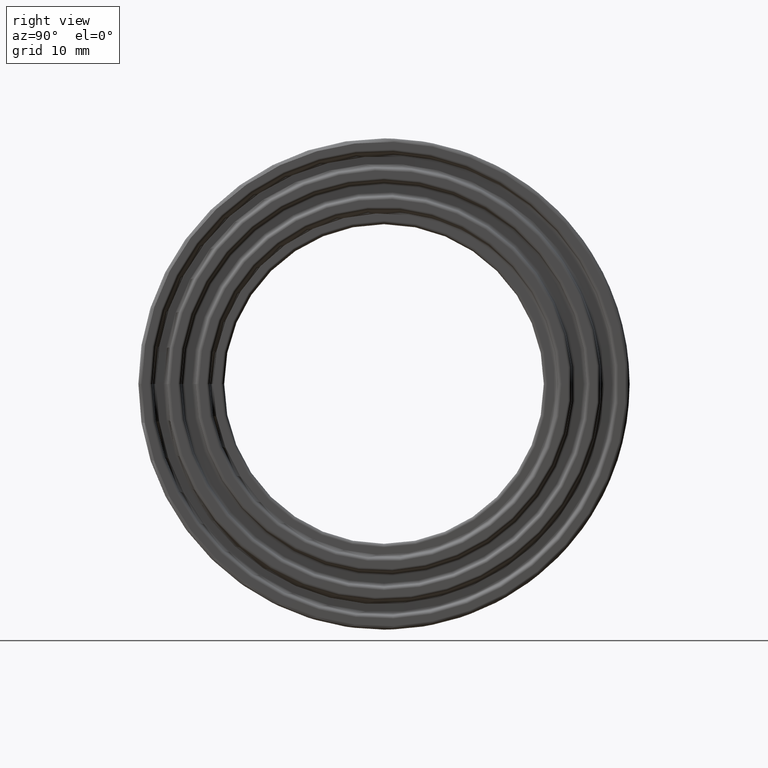
[diagram: clean part render]
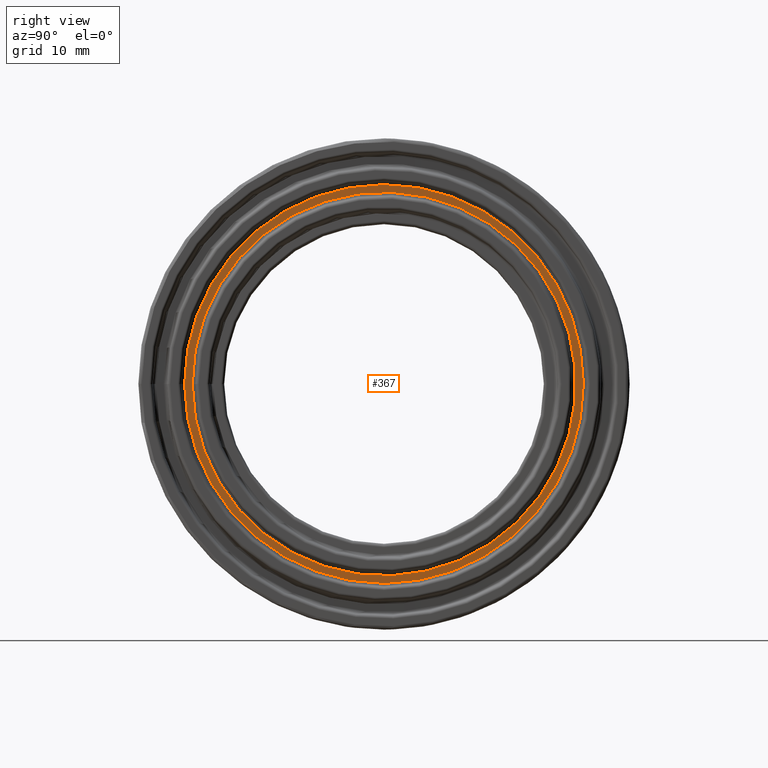
[diagram: same view with one face highlighted and labeled with its STEP entity id]
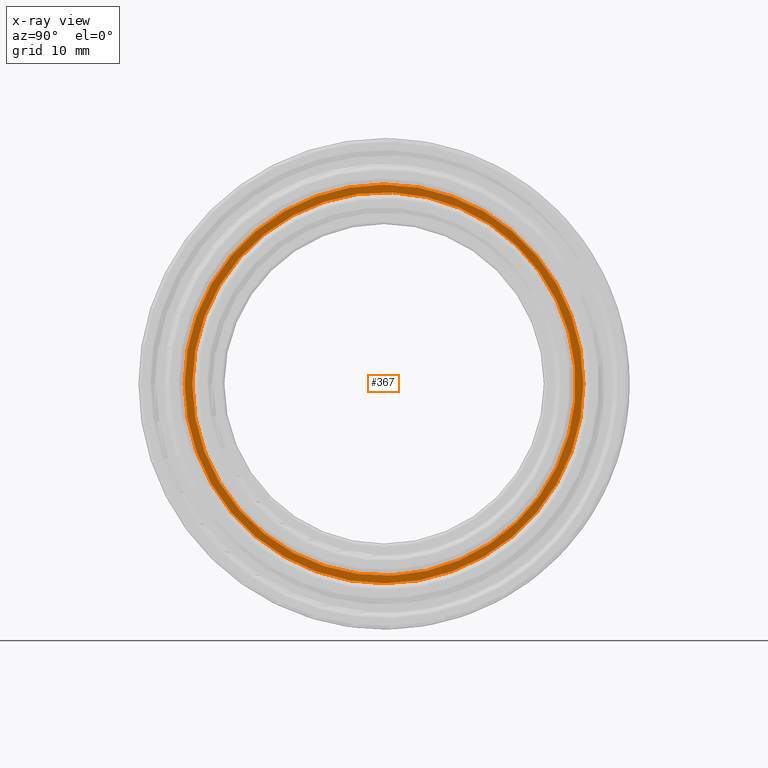
[diagram: x-ray of the same camera — body ghosted, the highlighted face saturated]
A machine part, right view. The second image highlights one B-rep face of the part: STEP entity #367.
The next image is the same camera in x-ray: the body ghosted, the highlighted face saturated — about 0% of this face is hidden behind the body in this view.
In plain terms, the highlighted planar face has unit normal (1, 0, 0).
Its self-contained STEP definition (entity closure, byte-faithful):
#30=PLANE('',#427);
#55=FACE_BOUND('',#144,.T.);
#88=FACE_OUTER_BOUND('',#143,.T.);
#143=EDGE_LOOP('',(#308));
#144=EDGE_LOOP('',(#309));
#189=CIRCLE('',#426,28.5);
#190=CIRCLE('',#428,29.625);
#222=VERTEX_POINT('',#651);
#223=VERTEX_POINT('',#654);
#255=EDGE_CURVE('',#222,#222,#189,.T.);
#256=EDGE_CURVE('',#223,#223,#190,.T.);
#308=ORIENTED_EDGE('',*,*,#256,.F.);
#309=ORIENTED_EDGE('',*,*,#255,.F.);
#367=ADVANCED_FACE('',(#88,#55),#30,.T.);
#426=AXIS2_PLACEMENT_3D('',#652,#540,#541);
#427=AXIS2_PLACEMENT_3D('',#653,#542,#543);
#428=AXIS2_PLACEMENT_3D('',#655,#544,#545);
#540=DIRECTION('center_axis',(1.,0.,0.));
#541=DIRECTION('ref_axis',(0.,1.,6.12323399573677E-17));
#542=DIRECTION('center_axis',(1.,0.,0.));
#543=DIRECTION('ref_axis',(0.,0.,-1.));
#544=DIRECTION('center_axis',(-1.,0.,0.));
#545=DIRECTION('ref_axis',(0.,1.,6.12323399573677E-17));
#651=CARTESIAN_POINT('',(32.8,-28.5,-5.23536506635493E-15));
#652=CARTESIAN_POINT('Origin',(32.8,0.,0.));
#653=CARTESIAN_POINT('Origin',(32.8,-30.125,0.));
#654=CARTESIAN_POINT('',(32.8,-29.625,1.81400807123702E-15));
#655=CARTESIAN_POINT('Origin',(32.8,0.,0.));